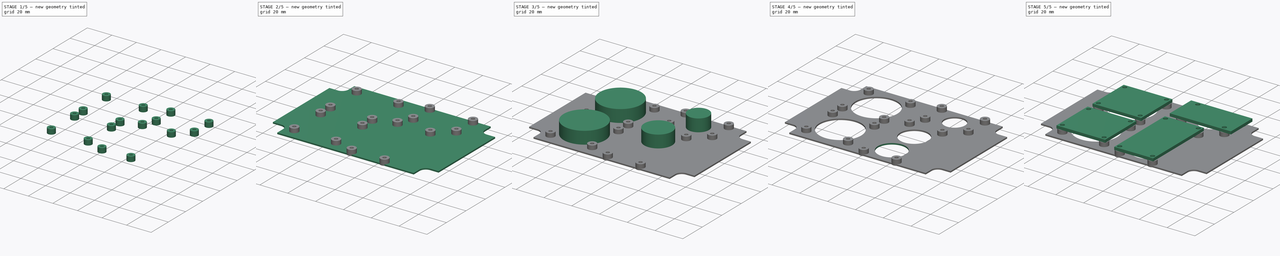
[diagram: build sequence overview — one tinted view per stage of 5, left to right]
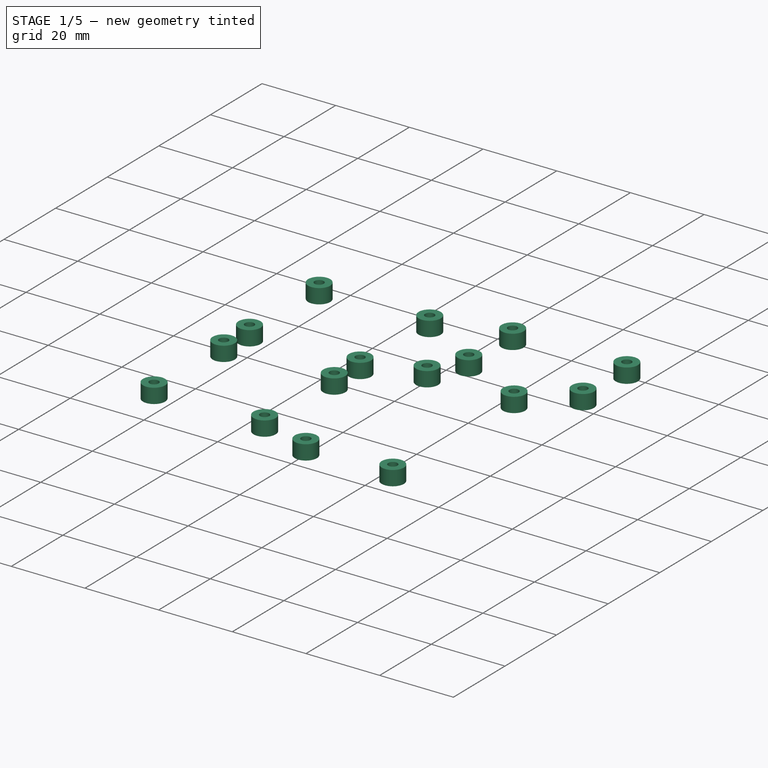
[diagram: stage 1 of 5 — iso view after this stage's code; geometry added in this stage tinted green]
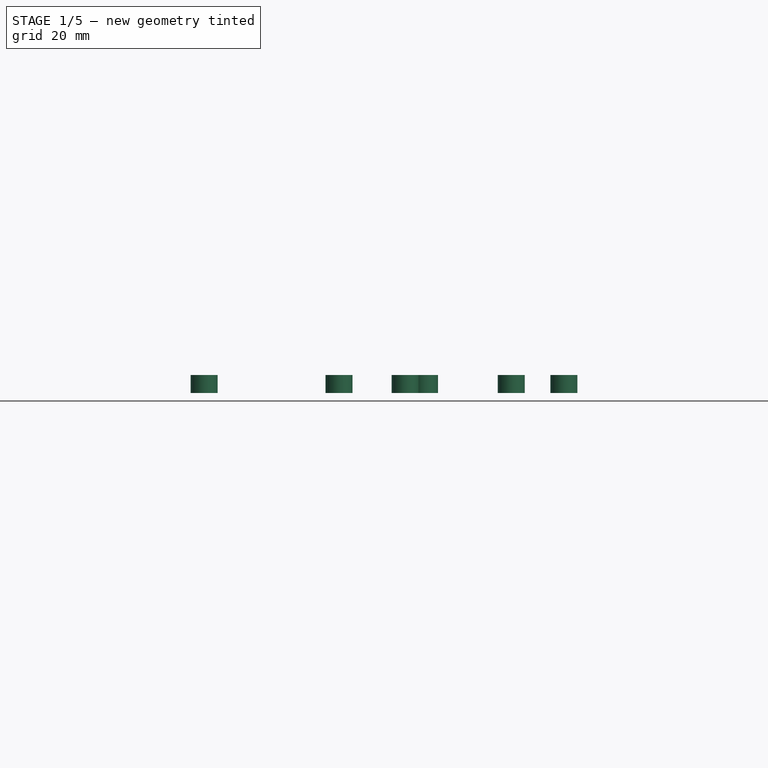
[diagram: stage 1 of 5 — front view after this stage's code; geometry added in this stage tinted green]
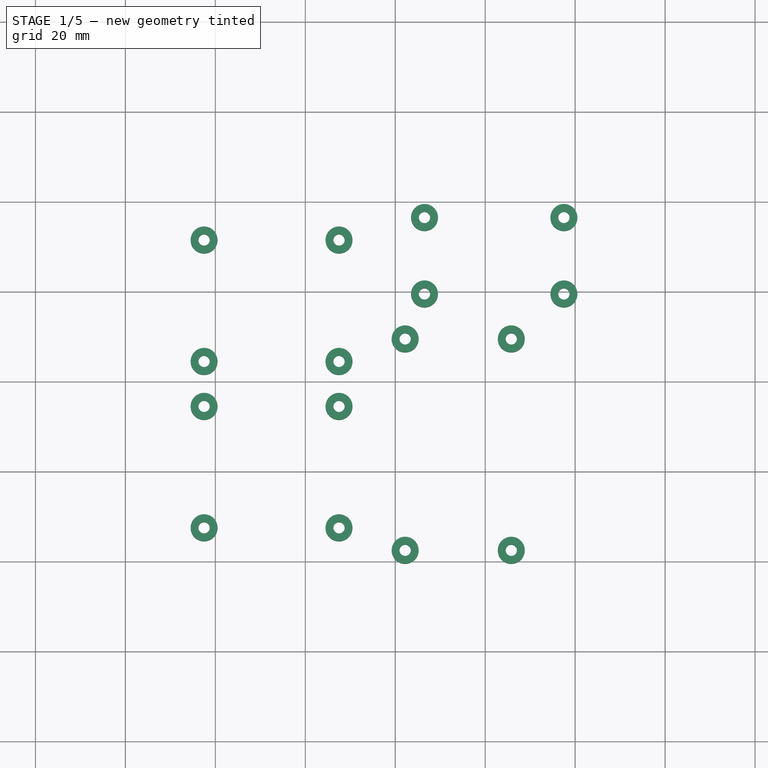
[diagram: stage 1 of 5 — top view after this stage's code; geometry added in this stage tinted green]
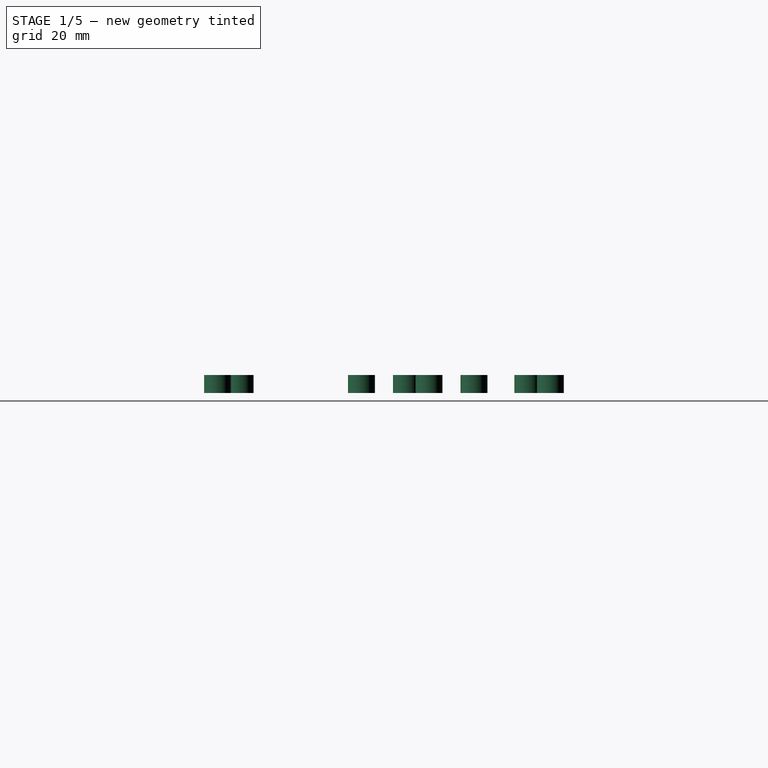
[diagram: stage 1 of 5 — right view after this stage's code; geometry added in this stage tinted green]
FCSTD DOCUMENT  (FreeCAD 0.18R4 (GitTag))
Label: ElectronicsMount
License: All rights reserved
LicenseURL: http://en.wikipedia.org/wiki/All_rights_reserved
objects: Part::Extrusion×8, Sketcher::SketchObject×7, Part::Cylinder×5, Part::MultiFuse×2, PartDesign::Body×1, PartDesign::Pad×1, Part::FeaturePython×1, Part::Cut×1, TechDraw::DrawSVGTemplate×1, TechDraw::DrawViewPart×1, TechDraw::DrawPage×1
note: 27 computed .brp shape members not serialized (recipe doc carries the construction recipe); baked Part::Feature solids carry a one-line shape summary decoded from their .brp

FEATURE [Sketcher::SketchObject] Sketch003  label="ESP32MountSketch"
  MapMode = 5
  Support = -> [XY_Plane]
  sketch-geometry (18):
    g0: LineSegment [constr] StartX=0 StartY=0 StartZ=0 EndX=28 EndY=0 EndZ=0
    g1: LineSegment [constr] StartX=28 StartY=0 StartZ=0 EndX=28 EndY=52 EndZ=0
    g2: LineSegment [constr] StartX=28 StartY=52 StartZ=0 EndX=0 EndY=52 EndZ=0
    g3: LineSegment [constr] StartX=0 StartY=52 StartZ=0 EndX=0 EndY=0 EndZ=0
    g4: Circle CenterX=2.2 CenterY=2.5 CenterZ=0 NormalX=0 NormalY=0 NormalZ=1 AngleXU=0 Radius=1.25
    g5: Circle CenterX=2.2 CenterY=49.5 CenterZ=0 NormalX=0 NormalY=0 NormalZ=1 AngleXU=0 Radius=1.25
    g6: Circle CenterX=25.8 CenterY=49.5 CenterZ=0 NormalX=0 NormalY=0 NormalZ=1 AngleXU=0 Radius=1.25
    g7: Circle CenterX=25.8 CenterY=2.5 CenterZ=0 NormalX=0 NormalY=0 NormalZ=1 AngleXU=0 Radius=1.25
    g8: LineSegment [constr] StartX=2.2 StartY=49.5 StartZ=0 EndX=25.8 EndY=49.5 EndZ=0
    g9: LineSegment [constr] StartX=25.8 StartY=49.5 StartZ=0 EndX=25.8 EndY=2.5 EndZ=0
    g10: LineSegment [constr] StartX=25.8 StartY=2.5 StartZ=0 EndX=2.2 EndY=2.5 EndZ=0
    g11: LineSegment [constr] StartX=2.2 StartY=2.5 StartZ=0 EndX=2.2 EndY=49.5 EndZ=0
    g12: LineSegment [constr] StartX=14 StartY=52 StartZ=0 EndX=14 EndY=0 EndZ=0
    g13: LineSegment [constr] StartX=0 StartY=26 StartZ=0 EndX=28 EndY=26 EndZ=0
    g14: Circle CenterX=2.2 CenterY=2.5 CenterZ=0 NormalX=0 NormalY=0 NormalZ=1 AngleXU=0 Radius=3
    g15: Circle CenterX=25.8 CenterY=2.5 CenterZ=0 NormalX=0 NormalY=0 NormalZ=1 AngleXU=0 Radius=3
    g16: Circle CenterX=25.8 CenterY=49.5 CenterZ=0 NormalX=0 NormalY=0 NormalZ=1 AngleXU=0 Radius=3
    g17: Circle CenterX=2.2 CenterY=49.5 CenterZ=0 NormalX=0 NormalY=0 NormalZ=1 AngleXU=0 Radius=3
  constraints (42):
    c: Coincident(g0,g1)
    c: Coincident(g1,g2)
    c: Coincident(g2,g3)
    c: Coincident(g3,g0)
    c: Horizontal(g0)
    c: Horizontal(g2)
    c: Vertical(g1)
    c: Vertical(g3)
    c: Coincident(g0,g-1)
    c: DistanceX(g2,g2) = 28
    c: DistanceY(g3,g3) = 52
    c: Equal(g5,g6)
    c: Equal(g6,g7)
    c: Equal(g7,g4)
    c: Diameter(g5) = 2.5
    c: Coincident(g8,g9)
    c: Coincident(g9,g10)
    c: Coincident(g10,g11)
    c: Coincident(g11,g8)
    c: Horizontal(g8)
    c: Horizontal(g10)
    c: Vertical(g9)
    c: Vertical(g11)
    c: Coincident(g8,g5)
    c: Coincident(g9,g7)
    c: DistanceX(g8,g8) = 23.6
    c: DistanceY(g9,g9) = 47
    c: Coincident(g6,g8)
    c: Coincident(g4,g10)
    c: PointOnObject(g12,g0)
    c: PointOnObject(g13,g1)
    c: Symmetric(g2,g1,g12)
    c: Symmetric(g2,g0,g13)
    c: Symmetric(g5,g4,g13)
    c: Symmetric(g4,g7,g12)
    c: Coincident(g15,g7)
    c: Coincident(g16,g6)
    c: Coincident(g17,g5)
    c: Equal(g17,g16)
    c: Equal(g16,g14)
    c: Equal(g14,g15)
    c: Diameter(g17) = 6
FEATURE [Part::Extrusion] Extrude004  label="ESP32Mount"
  Base = -> Sketch003
  Dir = (0,0,1)
  DirMode = 2
  FaceMakerClass = Part::FaceMakerBullseye
  LengthFwd = 4
  LengthRev = 0
  Placement = pos=(60,0,0) rot=(0,0,1;0rad)
  Solid = true
  Symmetric = false
FEATURE [Sketcher::SketchObject] Sketch004  label="DriverMountSketch"
  MapMode = 5
  Support = -> [XY_Plane]
  sketch-geometry (18):
    g0: LineSegment [constr] StartX=0 StartY=0 StartZ=0 EndX=32 EndY=0 EndZ=0
    g1: LineSegment [constr] StartX=32 StartY=0 StartZ=0 EndX=32 EndY=35 EndZ=0
    g2: LineSegment [constr] StartX=32 StartY=35 StartZ=0 EndX=0 EndY=35 EndZ=0
    g3: LineSegment [constr] StartX=0 StartY=35 StartZ=0 EndX=0 EndY=0 EndZ=0
    g4: Circle CenterX=2.5 CenterY=2.5 CenterZ=0 NormalX=0 NormalY=0 NormalZ=1 AngleXU=0 Radius=1.25
    g5: Circle CenterX=2.5 CenterY=32.5 CenterZ=0 NormalX=0 NormalY=0 NormalZ=1 AngleXU=0 Radius=1.25
    g6: Circle CenterX=29.5 CenterY=32.5 CenterZ=0 NormalX=0 NormalY=0 NormalZ=1 AngleXU=0 Radius=1.25
    g7: Circle CenterX=29.5 CenterY=2.5 CenterZ=0 NormalX=0 NormalY=0 NormalZ=1 AngleXU=0 Radius=1.25
    g8: LineSegment [constr] StartX=2.5 StartY=32.5 StartZ=0 EndX=29.5 EndY=32.5 EndZ=0
    g9: LineSegment [constr] StartX=29.5 StartY=32.5 StartZ=0 EndX=29.5 EndY=2.5 EndZ=0
    g10: LineSegment [constr] StartX=29.5 StartY=2.5 StartZ=0 EndX=2.5 EndY=2.5 EndZ=0
    g11: LineSegment [constr] StartX=2.5 StartY=2.5 StartZ=0 EndX=2.5 EndY=32.5 EndZ=0
    g12: LineSegment [constr] StartX=16 StartY=35 StartZ=0 EndX=16 EndY=0 EndZ=0
    g13: LineSegment [constr] StartX=0 StartY=17.5 StartZ=0 EndX=32 EndY=17.5 EndZ=0
    g14: Circle CenterX=2.5 CenterY=32.5 CenterZ=0 NormalX=0 NormalY=0 NormalZ=1 AngleXU=0 Radius=3
    g15: Circle CenterX=29.5 CenterY=32.5 CenterZ=0 NormalX=0 NormalY=0 NormalZ=1 AngleXU=0 Radius=3
    g16: Circle CenterX=2.5 CenterY=2.5 CenterZ=0 NormalX=0 NormalY=0 NormalZ=1 AngleXU=0 Radius=3
    g17: Circle CenterX=29.5 CenterY=2.5 CenterZ=0 NormalX=0 NormalY=0 NormalZ=1 AngleXU=0 Radius=3
  constraints (43):
    c: Coincident(g0,g1)
    c: Coincident(g1,g2)
    c: Coincident(g2,g3)
    c: Coincident(g3,g0)
    c: Horizontal(g0)
    c: Horizontal(g2)
    c: Vertical(g1)
    c: Vertical(g3)
    c: Coincident(g0,g-1)
    c: DistanceX(g2,g2) = 32
    c: DistanceY(g3,g3) = 35
    c: Equal(g5,g6)
    c: Equal(g6,g7)
    c: Equal(g7,g4)
    c: Diameter(g5) = 2.5
    c: Coincident(g8,g9)
    c: Coincident(g9,g10)
    c: Coincident(g10,g11)
    c: Coincident(g11,g8)
    c: Horizontal(g8)
    c: Horizontal(g10)
    c: Vertical(g9)
    c: Vertical(g11)
    c: Coincident(g8,g5)
    c: Coincident(g9,g7)
    c: DistanceX(g8,g8) = 27
    c: DistanceY(g9,g9) = 30
    c: Coincident(g6,g8)
    c: Coincident(g4,g10)
    c: PointOnObject(g12,g0)
    c: PointOnObject(g13,g1)
    c: Symmetric(g2,g1,g12)
    c: Symmetric(g2,g0,g13)
    c: Symmetric(g5,g4,g13)
    c: Symmetric(g4,g7,g12)
    c: Coincident(g14,g5)
    c: Coincident(g15,g6)
    c: Coincident(g16,g4)
    c: Coincident(g17,g7)
    c: Equal(g16,g17)
    c: Equal(g17,g15)
    c: Equal(g15,g14)
    c: Diameter(g14) = 6
FEATURE [Part::Extrusion] Extrude005  label="RADriverMount"
  Base = -> Sketch004
  Dir = (0,0,1)
  DirMode = 2
  FaceMakerClass = Part::FaceMakerBullseye
  LengthFwd = 4
  LengthRev = 0
  Placement = pos=(50,42,0) rot=(0,0,1;1.5708rad)
  Solid = true
  Symmetric = false
FEATURE [Part::Extrusion] Extrude006  label="DECDriverMount"
  Base = -> Sketch004
  Dir = (0,0,1)
  DirMode = 2
  FaceMakerClass = Part::FaceMakerBullseye
  LengthFwd = 4
  LengthRev = 0
  Placement = pos=(50,5,0) rot=(0,0,1;1.5708rad)
  Solid = true
  Symmetric = false
FEATURE [Sketcher::SketchObject] Sketch005  label="SupplyMountSketch"
  MapMode = 5
  Support = -> [XY_Plane]
  sketch-geometry (18):
    g0: LineSegment [constr] StartX=0 StartY=0 StartZ=0 EndX=22 EndY=0 EndZ=0
    g1: LineSegment [constr] StartX=22 StartY=0 StartZ=0 EndX=22 EndY=44 EndZ=0
    g2: LineSegment [constr] StartX=22 StartY=44 StartZ=0 EndX=0 EndY=44 EndZ=0
    g3: LineSegment [constr] StartX=0 StartY=44 StartZ=0 EndX=0 EndY=0 EndZ=0
    g4: Circle CenterX=2.5 CenterY=6.5 CenterZ=0 NormalX=0 NormalY=0 NormalZ=1 AngleXU=0 Radius=1.25
    g5: Circle CenterX=2.5 CenterY=37.5 CenterZ=0 NormalX=0 NormalY=0 NormalZ=1 AngleXU=0 Radius=1.25
    g6: Circle CenterX=19.5 CenterY=37.5 CenterZ=0 NormalX=0 NormalY=0 NormalZ=1 AngleXU=0 Radius=1.25
    g7: Circle CenterX=19.5 CenterY=6.5 CenterZ=0 NormalX=0 NormalY=0 NormalZ=1 AngleXU=0 Radius=1.25
    g8: LineSegment [constr] StartX=2.5 StartY=37.5 StartZ=0 EndX=19.5 EndY=37.5 EndZ=0
    g9: LineSegment [constr] StartX=19.5 StartY=37.5 StartZ=0 EndX=19.5 EndY=6.5 EndZ=0
    g10: LineSegment [constr] StartX=19.5 StartY=6.5 StartZ=0 EndX=2.5 EndY=6.5 EndZ=0
    g11: LineSegment [constr] StartX=2.5 StartY=6.5 StartZ=0 EndX=2.5 EndY=37.5 EndZ=0
    g12: LineSegment [constr] StartX=11 StartY=44 StartZ=0 EndX=11 EndY=0 EndZ=0
    g13: LineSegment [constr] StartX=0 StartY=22 StartZ=0 EndX=22 EndY=22 EndZ=0
    g14: Circle CenterX=2.5 CenterY=37.5 CenterZ=0 NormalX=0 NormalY=0 NormalZ=1 AngleXU=0 Radius=3
    g15: Circle CenterX=19.5 CenterY=37.5 CenterZ=0 NormalX=0 NormalY=0 NormalZ=1 AngleXU=0 Radius=3
    g16: Circle CenterX=19.5 CenterY=6.5 CenterZ=0 NormalX=0 NormalY=0 NormalZ=1 AngleXU=0 Radius=3
    g17: Circle CenterX=2.5 CenterY=6.5 CenterZ=0 NormalX=0 NormalY=0 NormalZ=1 AngleXU=0 Radius=3
  constraints (43):
    c: Coincident(g0,g1)
    c: Coincident(g1,g2)
    c: Coincident(g2,g3)
    c: Coincident(g3,g0)
    c: Horizontal(g0)
    c: Horizontal(g2)
    c: Vertical(g1)
    c: Vertical(g3)
    c: Coincident(g0,g-1)
    c: DistanceX(g2,g2) = 22
    c: DistanceY(g3,g3) = 44
    c: Equal(g5,g6)
    c: Equal(g6,g7)
    c: Equal(g7,g4)
    c: Diameter(g5) = 2.5
    c: Coincident(g8,g9)
    c: Coincident(g9,g10)
    c: Coincident(g10,g11)
    c: Coincident(g11,g8)
    c: Horizontal(g8)
    c: Horizontal(g10)
    c: Vertical(g9)
    c: Vertical(g11)
    c: Coincident(g8,g5)
    c: Coincident(g9,g7)
    c: DistanceX(g8,g8) = 17
    c: DistanceY(g9,g9) = 31
    c: Coincident(g6,g8)
    c: Coincident(g4,g10)
    c: PointOnObject(g12,g0)
    c: PointOnObject(g13,g1)
    c: Symmetric(g2,g1,g12)
    c: Symmetric(g2,g0,g13)
    c: Symmetric(g5,g4,g13)
    c: Symmetric(g4,g7,g12)
    c: Coincident(g14,g5)
    c: Coincident(g15,g6)
    c: Coincident(g16,g7)
    c: Coincident(g17,g4)
    c: Equal(g14,g15)
    c: Equal(g15,g17)
    c: Equal(g17,g16)
    c: Diameter(g14) = 6
FEATURE [Part::Extrusion] Extrude007  label="SupplyMount"
  Base = -> Sketch005
  Dir = (0,0,1)
  DirMode = 2
  FaceMakerClass = Part::FaceMakerBullseye
  LengthFwd = 4
  LengthRev = 0
  Placement = pos=(104,57,0) rot=(0,0,1;1.5708rad)
  Solid = true
  Symmetric = false
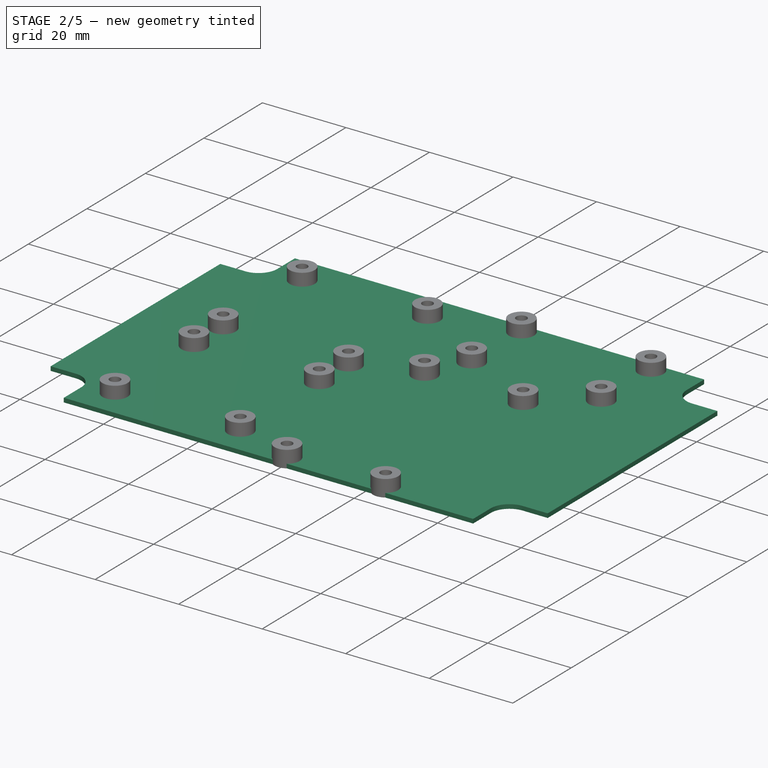
[diagram: stage 2 of 5 — iso view after this stage's code; geometry added in this stage tinted green]
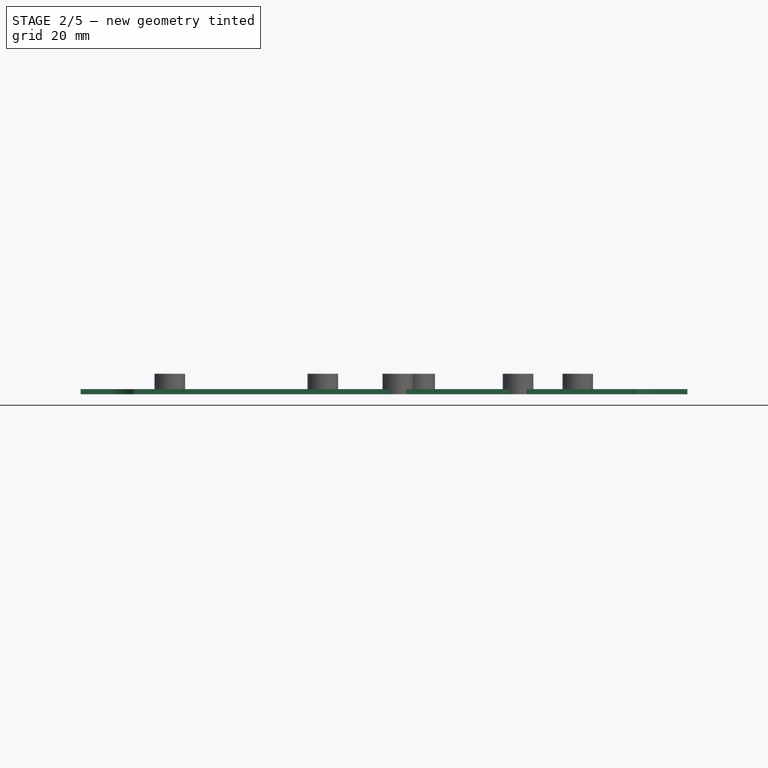
[diagram: stage 2 of 5 — front view after this stage's code; geometry added in this stage tinted green]
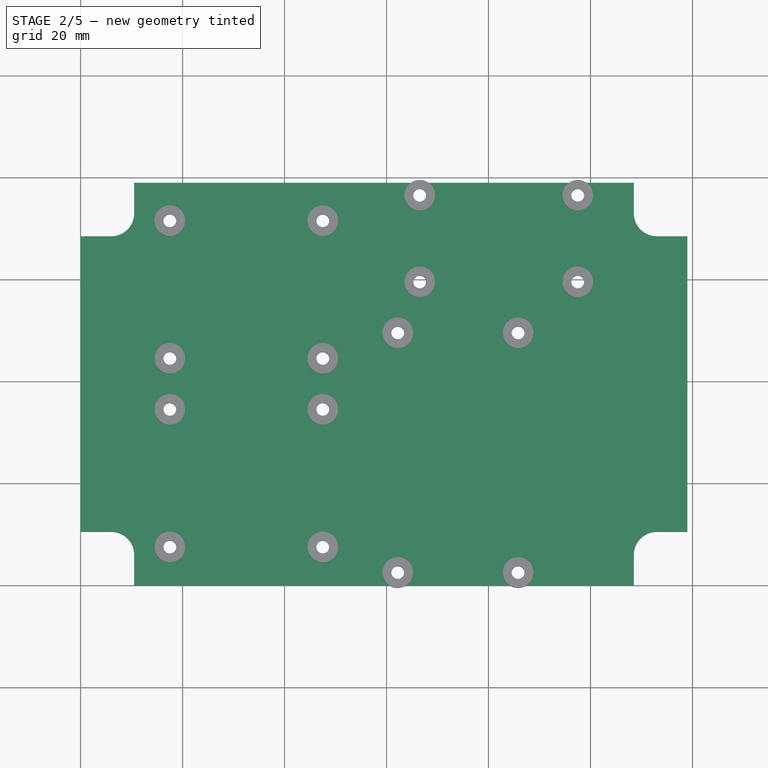
[diagram: stage 2 of 5 — top view after this stage's code; geometry added in this stage tinted green]
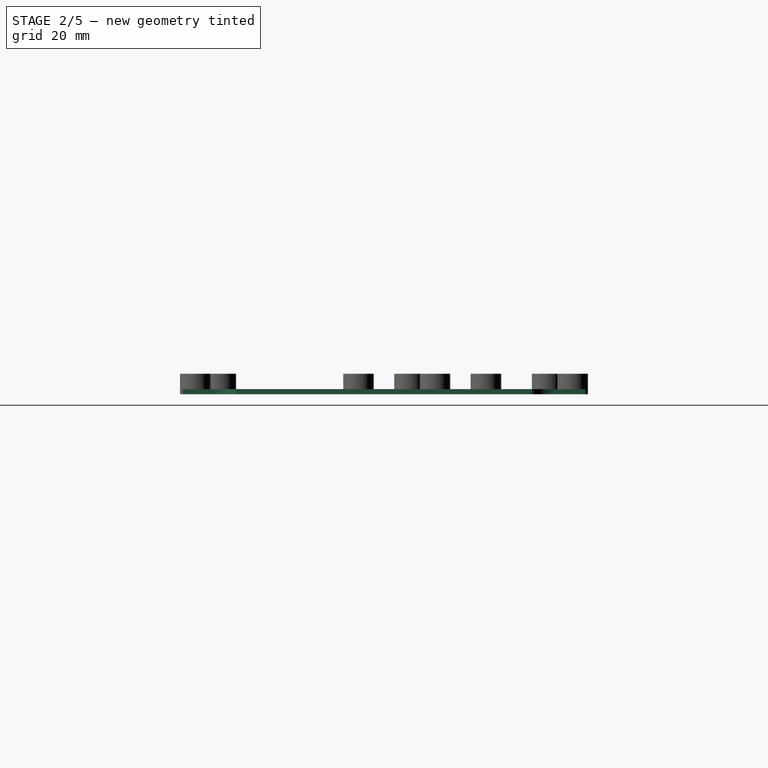
[diagram: stage 2 of 5 — right view after this stage's code; geometry added in this stage tinted green]
FEATURE [Sketcher::SketchObject] Sketch006
  MapMode = 5
  Support = -> [XY_Plane]
  sketch-geometry (16):
    g0: ArcOfCircle CenterX=6 CenterY=73 CenterZ=0 NormalX=0 NormalY=0 NormalZ=1 AngleXU=0 Radius=4.5 StartAngle=4.71239 EndAngle=6.28319
    g1: LineSegment StartX=6 StartY=68.5 StartZ=0 EndX=0 EndY=68.5 EndZ=0
    g2: LineSegment StartX=10.5 StartY=73 StartZ=0 EndX=10.5 EndY=79 EndZ=0
    g3: LineSegment StartX=0 StartY=68.5 StartZ=0 EndX=0 EndY=10.5 EndZ=0
    g4: ArcOfCircle CenterX=6 CenterY=6 CenterZ=0 NormalX=0 NormalY=0 NormalZ=1 AngleXU=0 Radius=4.5 StartAngle=6.28319 EndAngle=7.85398
    g5: LineSegment StartX=6 StartY=10.5 StartZ=0 EndX=0 EndY=10.5 EndZ=0
    g6: LineSegment StartX=10.5 StartY=0 StartZ=0 EndX=10.5 EndY=6 EndZ=0
    g7: LineSegment StartX=10.5 StartY=0 StartZ=0 EndX=108.5 EndY=0 EndZ=0
    g8: ArcOfCircle CenterX=113 CenterY=6 CenterZ=0 NormalX=0 NormalY=0 NormalZ=1 AngleXU=0 Radius=4.5 StartAngle=1.57079 EndAngle=3.14159
    g9: LineSegment StartX=119 StartY=10.5 StartZ=0 EndX=113 EndY=10.5 EndZ=0
    g10: LineSegment StartX=108.5 StartY=0 StartZ=0 EndX=108.5 EndY=6 EndZ=0
    g11: LineSegment StartX=119 StartY=10.5 StartZ=0 EndX=119 EndY=68.5 EndZ=0
    g12: ArcOfCircle CenterX=113 CenterY=73 CenterZ=0 NormalX=0 NormalY=0 NormalZ=1 AngleXU=0 Radius=4.5 StartAngle=3.14159 EndAngle=4.71239
    g13: LineSegment StartX=119 StartY=68.5 StartZ=0 EndX=113 EndY=68.5 EndZ=0
    g14: LineSegment StartX=108.5 StartY=79 StartZ=0 EndX=108.5 EndY=73 EndZ=0
    g15: LineSegment StartX=108.5 StartY=79 StartZ=0 EndX=10.5 EndY=79 EndZ=0
  constraints (52):
    c: Diameter(g0) = 9
    c: Horizontal(g1)
    c: Vertical(g2)
    c: Tangent(g2,g0)
    c: Coincident(g0,g1)
    c: Coincident(g0,g2)
    c: Tangent(g1,g0)
    c: Coincident(g15,g2)
    c: Coincident(g3,g1)
    c: Horizontal(g5)
    c: Coincident(g4,g6)
    c: Vertical(g6)
    c: Coincident(g4,g6)
    c: Equal(g0,g4)
    c: Coincident(g3,g5)
    c: Coincident(g7,g6)
    c: Tangent(g4,g5) = -1.5708
    c: Tangent(g4,g6)
    c: PointOnObject(g6,g-1)
    c: PointOnObject(g3,g-2)
    c: Horizontal(g7)
    c: Tangent(g9,g8)
    c: Tangent(g10,g8)
    c: Coincident(g8,g10)
    c: Coincident(g8,g9)
    c: Horizontal(g9)
    c: Vertical(g10)
    c: Equal(g4,g8)
    c: Coincident(g7,g10)
    c: Coincident(g11,g9)
    c: Equal(g10,g9)
    c: Vertical(g11)
    c: Tangent(g14,g12)
    c: Coincident(g12,g14)
    c: Vertical(g14)
    c: Horizontal(g13)
    c: Tangent(g12,g13)
    c: Equal(g12,g0)
    c: Equal(g14,g13)
    c: Equal(g14,g2)
    c: Horizontal(g15)
    c: Coincident(g14,g15)
    c: Coincident(g12,g13)
    c: Coincident(g13,g11)
    c: Equal(g1,g2)
    c: Vertical(g3)
    c: DistanceX(g1,g1) = 6
    c: Equal(g1,g5)
    c: Equal(g5,g6)
    c: Equal(g6,g10)
    c: DistanceY(g3,g3) = 58
    c: DistanceX(g7,g7) = 98
FEATURE [PartDesign::Body] Body
  Group = -> [Sketch,Sketch001,Sketch002,Sketch006]
  Origin = -> Origin
FEATURE [PartDesign::Pad] Pad  label="Plate"
  Length = 1
  Length2 = 100
  Profile = -> Sketch006
  Type = 0
FEATURE [Part::MultiFuse] Fusion  label="Mounts"
  Shapes = -> [Extrude007,Extrude006,Extrude005,Extrude004]
FEATURE [Part::FeaturePython] Embed  # WARN: FeaturePython — macro-defined, semantics opaque (R4)
  Base = -> Pad
  Tolerance = 0
  Tool = -> Fusion
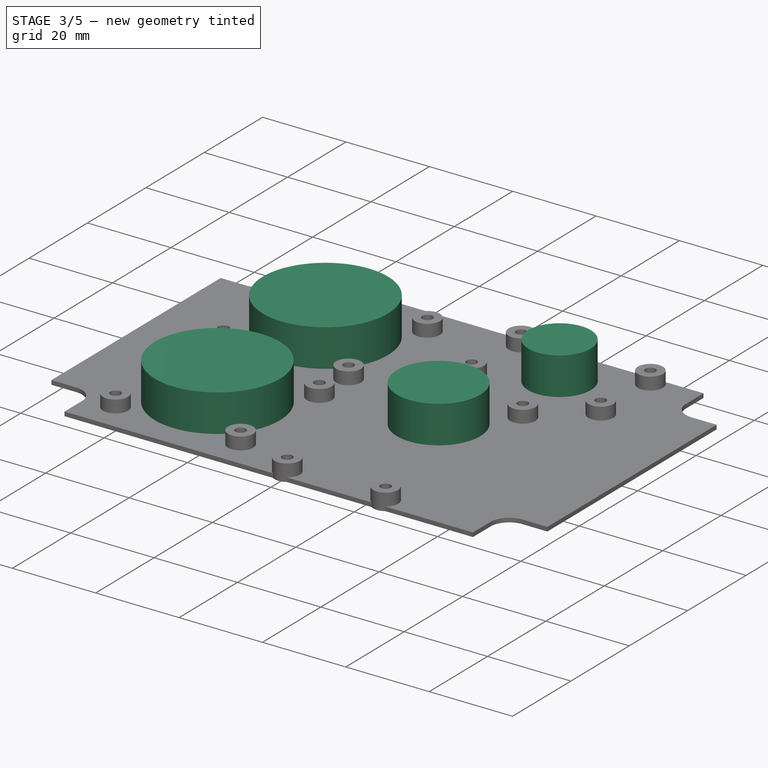
[diagram: stage 3 of 5 — iso view after this stage's code; geometry added in this stage tinted green]
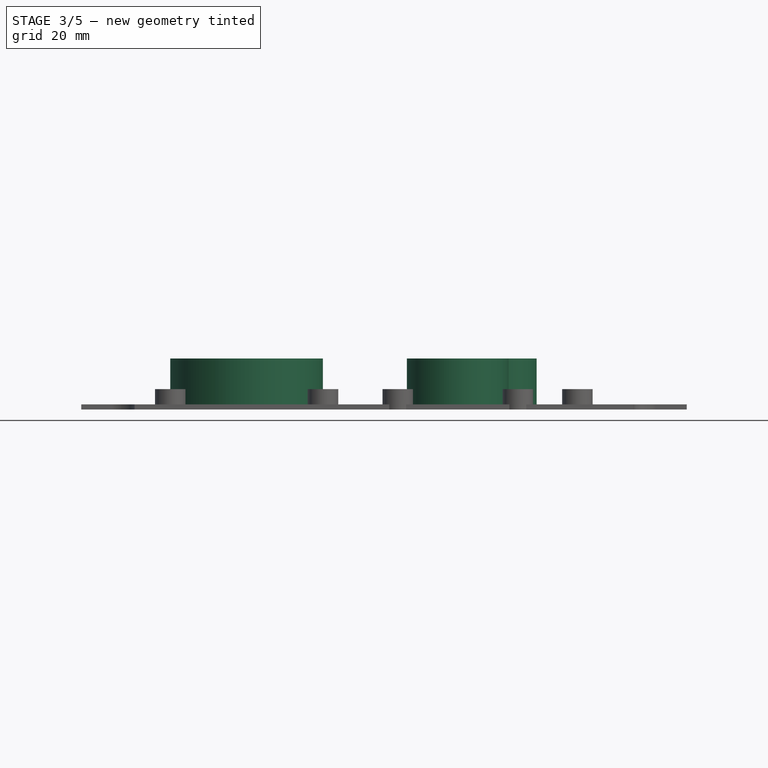
[diagram: stage 3 of 5 — front view after this stage's code; geometry added in this stage tinted green]
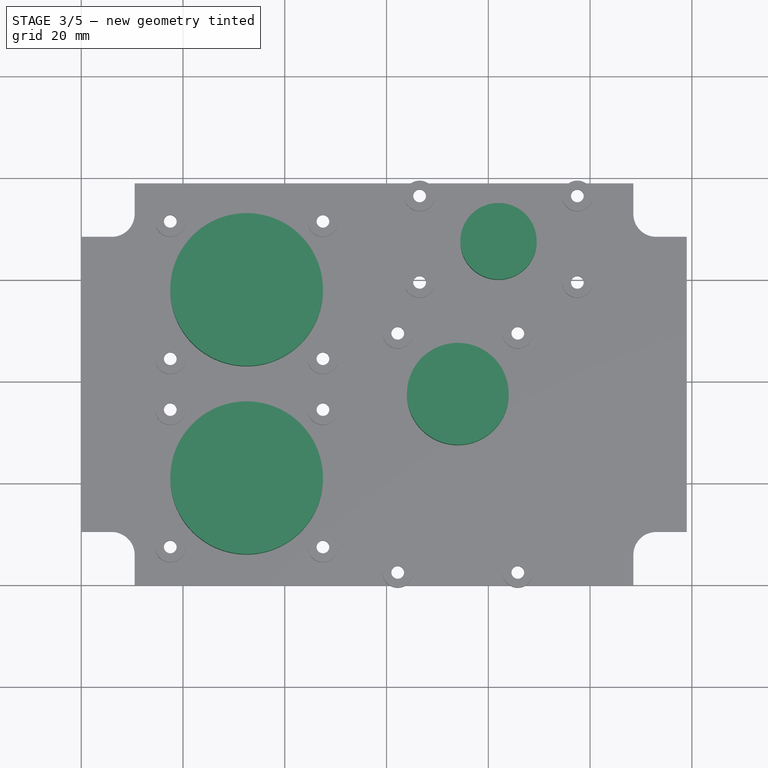
[diagram: stage 3 of 5 — top view after this stage's code; geometry added in this stage tinted green]
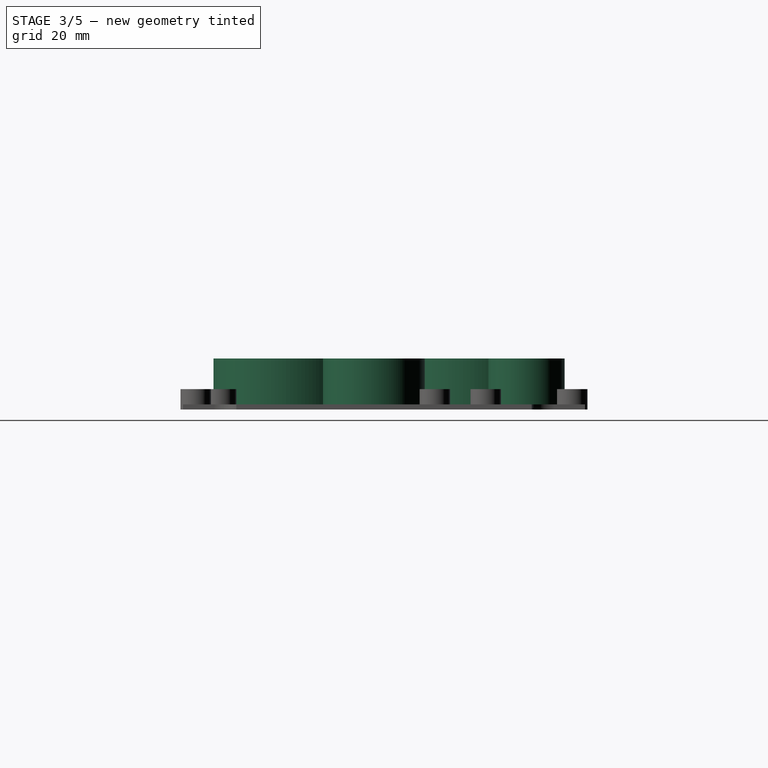
[diagram: stage 3 of 5 — right view after this stage's code; geometry added in this stage tinted green]
FEATURE [Part::Cylinder] Cylinder001
  Angle = 360
  AttacherType = Attacher::AttachEngine3D
  Height = 10
  Placement = pos=(32.5,21,0) rot=(0,0,1;0rad)
  Radius = 15
FEATURE [Part::Cylinder] Cylinder002
  Angle = 360
  AttacherType = Attacher::AttachEngine3D
  Height = 10
  Placement = pos=(32.5,58,0) rot=(0,0,1;0rad)
  Radius = 15
FEATURE [Part::Cylinder] Cylinder003
  Angle = 360
  AttacherType = Attacher::AttachEngine3D
  Height = 10
  Placement = pos=(82,67.5,0) rot=(0,0,1;0rad)
  Radius = 7.5
FEATURE [Part::Cylinder] Cylinder004
  Angle = 360
  AttacherType = Attacher::AttachEngine3D
  Height = 10
  Placement = pos=(74,37.5,0) rot=(0,0,1;0rad)
  Radius = 10
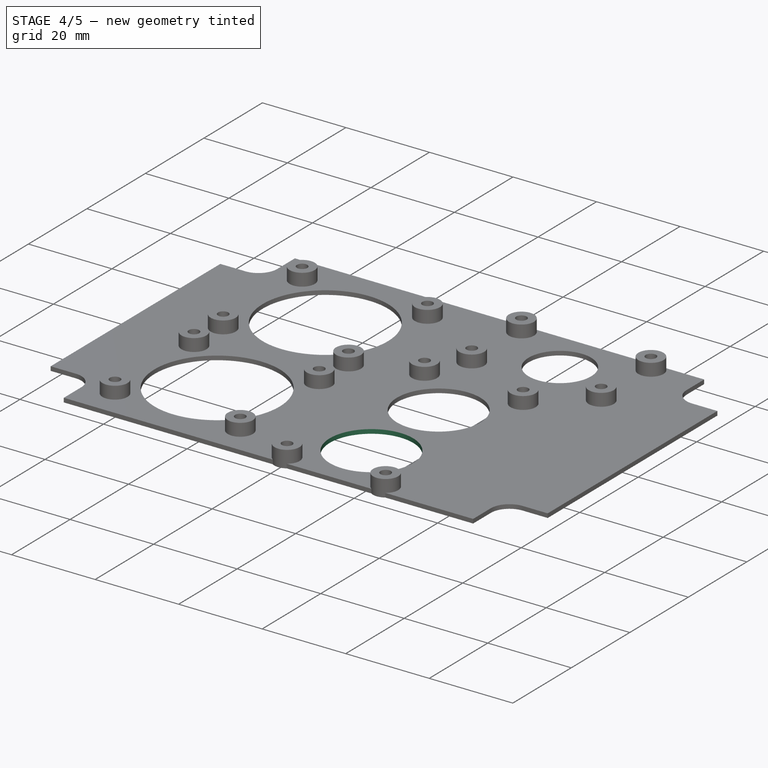
[diagram: stage 4 of 5 — iso view after this stage's code; geometry added in this stage tinted green]
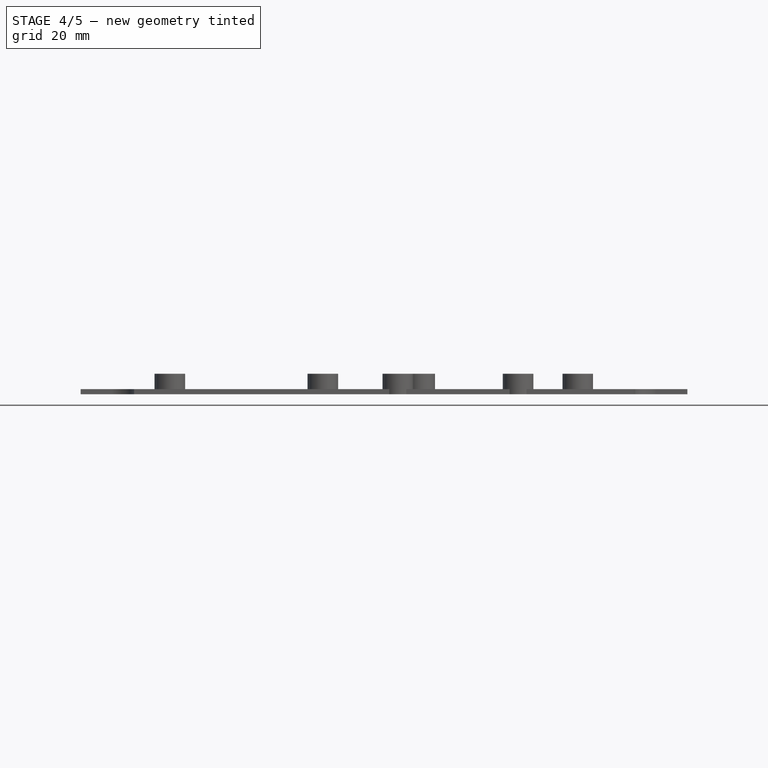
[diagram: stage 4 of 5 — front view after this stage's code; geometry added in this stage tinted green]
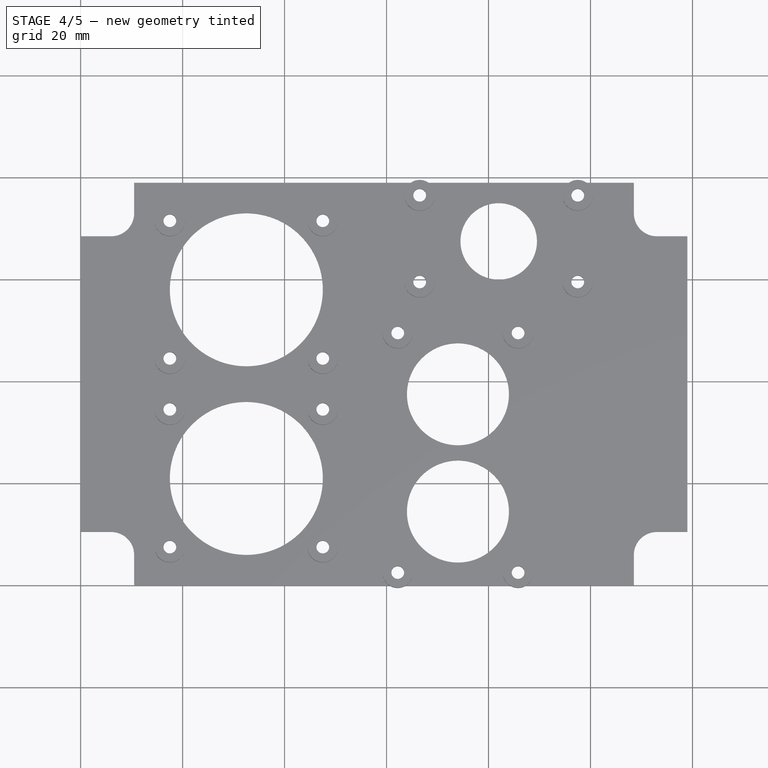
[diagram: stage 4 of 5 — top view after this stage's code; geometry added in this stage tinted green]
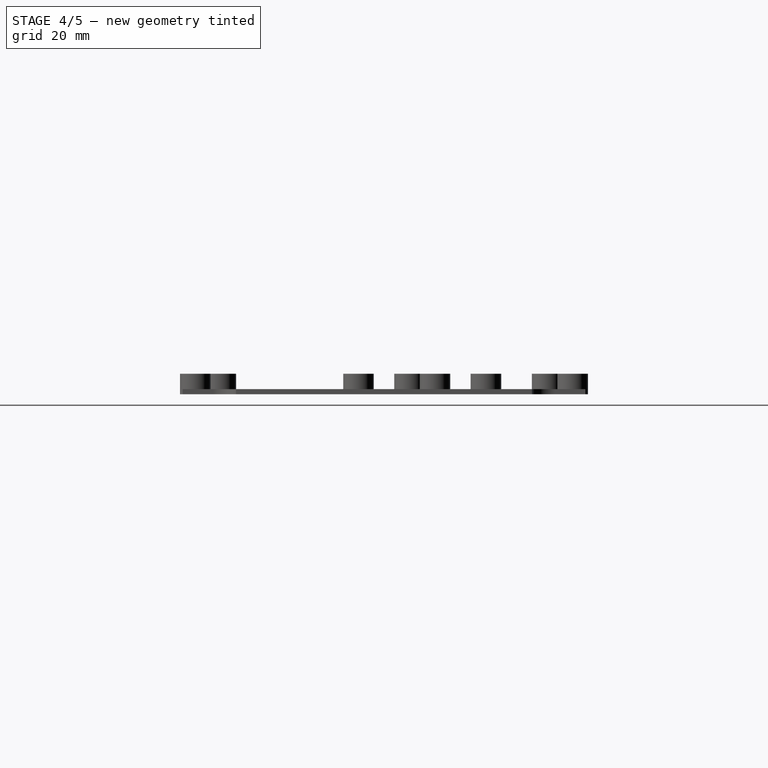
[diagram: stage 4 of 5 — right view after this stage's code; geometry added in this stage tinted green]
FEATURE [Part::Cylinder] Cylinder
  Angle = 360
  AttacherType = Attacher::AttachEngine3D
  Height = 10
  Placement = pos=(74,14.5,0) rot=(0,0,1;0rad)
  Radius = 10
FEATURE [Part::MultiFuse] Fusion002
  Placement = pos=(0,0,-4) rot=(0,0,1;0rad)
  Shapes = -> [Cylinder,Cylinder004,Cylinder002,Cylinder003,Cylinder001]
FEATURE [Part::Cut] Cut  label="_Final"
  Base = -> Embed
  Tool = -> Fusion002
FEATURE [TechDraw::DrawSVGTemplate] Template
  EditableTexts = Designed_by_Name=Designed by Name; Drawing_number=Drawing number; FC-Date=Date; FC-SC=Scale; FC-SH=Sheet; FC-Title=Title; Subtitle=Subtitle; Weight=Weight
  Height = 210
  Orientation = 1
  Width = 297
FEATURE [TechDraw::DrawViewPart] View
  CoarseView = false
  Direction = (0,0,1)
  Focus = 100
  HardHidden = false
  IsoCount = 0
  IsoHidden = false
  IsoVisible = false
  LockPosition = false
  Perspective = false
  Rotation = 0
  ScaleType = 0
  SeamHidden = false
  SeamVisible = false
  SmoothHidden = false
  SmoothVisible = false
  Source = -> [Cut]
  X = 148.5
  Y = 105
FEATURE [TechDraw::DrawPage] Page
  KeepUpdated = true
  ProjectionType = 0
  Template = -> Template
  Views = -> [View]
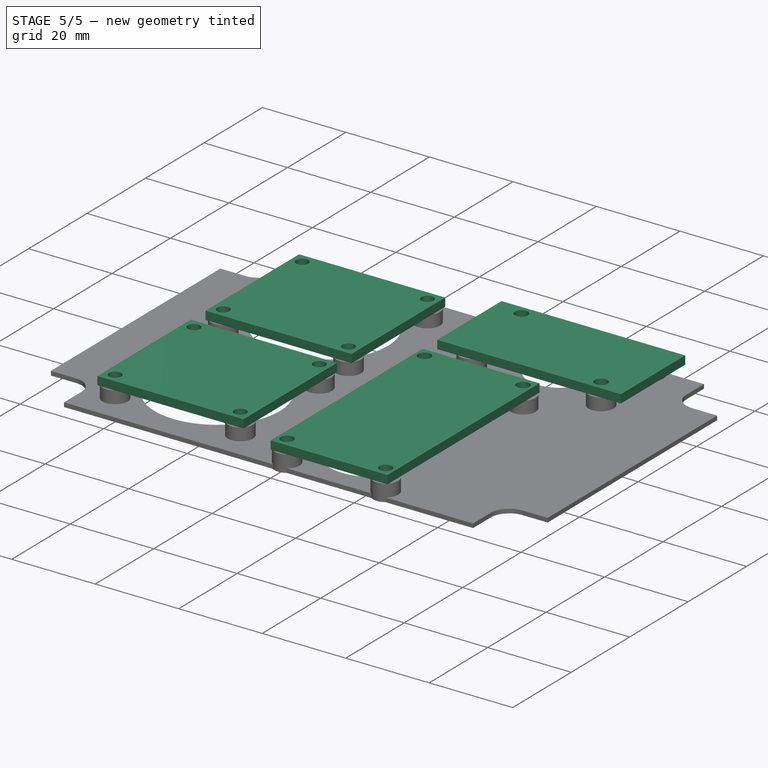
[diagram: stage 5 of 5 — iso view after this stage's code; geometry added in this stage tinted green]
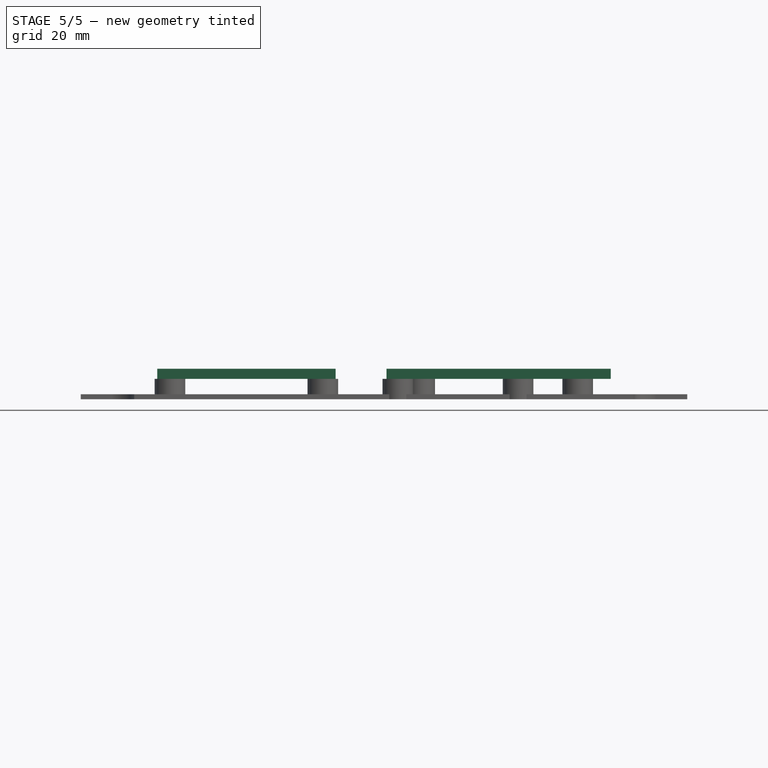
[diagram: stage 5 of 5 — front view after this stage's code; geometry added in this stage tinted green]
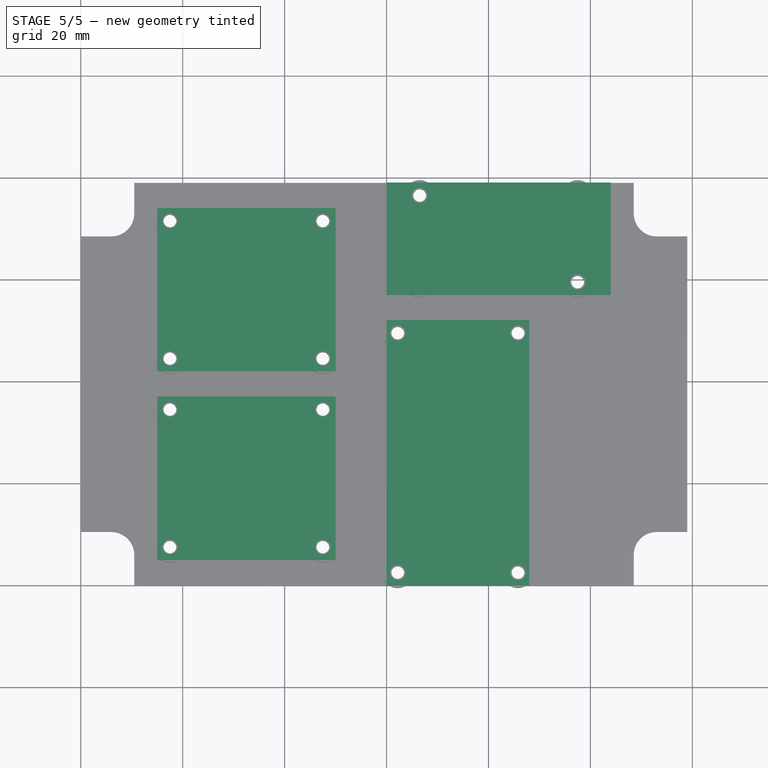
[diagram: stage 5 of 5 — top view after this stage's code; geometry added in this stage tinted green]
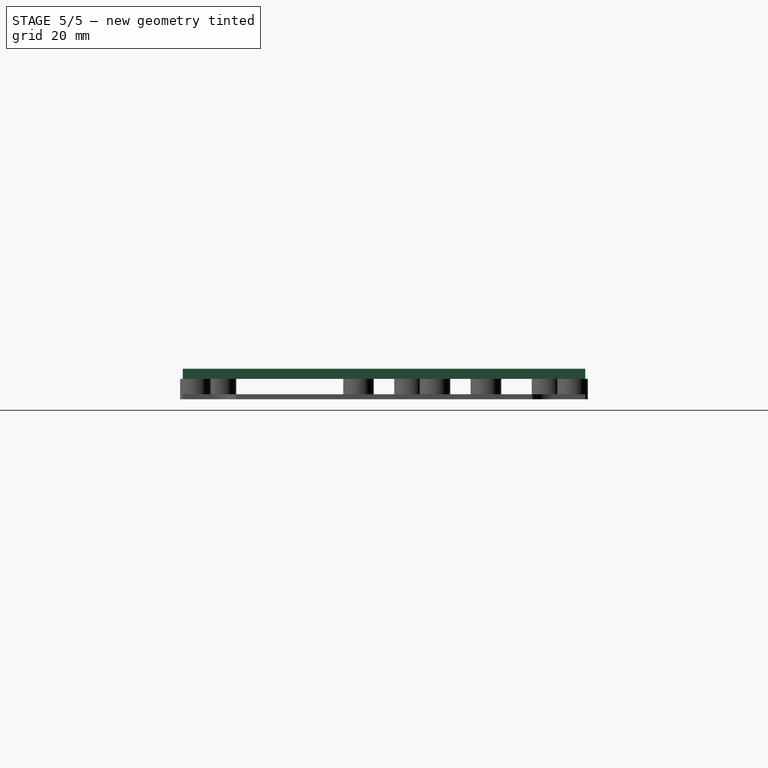
[diagram: stage 5 of 5 — right view after this stage's code; geometry added in this stage tinted green]
FEATURE [Sketcher::SketchObject] Sketch  label="ESP32Sketch"
  MapMode = 5
  Support = -> [XY_Plane]
  sketch-geometry (14):
    g0: LineSegment StartX=0 StartY=0 StartZ=0 EndX=28 EndY=0 EndZ=0
    g1: LineSegment StartX=28 StartY=0 StartZ=0 EndX=28 EndY=52 EndZ=0
    g2: LineSegment StartX=28 StartY=52 StartZ=0 EndX=0 EndY=52 EndZ=0
    g3: LineSegment StartX=0 StartY=52 StartZ=0 EndX=0 EndY=0 EndZ=0
    g4: Circle CenterX=2.2 CenterY=2.5 CenterZ=0 NormalX=0 NormalY=0 NormalZ=1 AngleXU=0 Radius=1.5
    g5: Circle CenterX=2.2 CenterY=49.5 CenterZ=0 NormalX=0 NormalY=0 NormalZ=1 AngleXU=0 Radius=1.5
    g6: Circle CenterX=25.8 CenterY=49.5 CenterZ=0 NormalX=0 NormalY=0 NormalZ=1 AngleXU=0 Radius=1.5
    g7: Circle CenterX=25.8 CenterY=2.5 CenterZ=0 NormalX=0 NormalY=0 NormalZ=1 AngleXU=0 Radius=1.5
    g8: LineSegment [constr] StartX=2.2 StartY=49.5 StartZ=0 EndX=25.8 EndY=49.5 EndZ=0
    g9: LineSegment [constr] StartX=25.8 StartY=49.5 StartZ=0 EndX=25.8 EndY=2.5 EndZ=0
    g10: LineSegment [constr] StartX=25.8 StartY=2.5 StartZ=0 EndX=2.2 EndY=2.5 EndZ=0
    g11: LineSegment [constr] StartX=2.2 StartY=2.5 StartZ=0 EndX=2.2 EndY=49.5 EndZ=0
    g12: LineSegment [constr] StartX=14 StartY=52 StartZ=0 EndX=14 EndY=0 EndZ=0
    g13: LineSegment [constr] StartX=0 StartY=26 StartZ=0 EndX=28 EndY=26 EndZ=0
  constraints (35):
    c: Coincident(g0,g1)
    c: Coincident(g1,g2)
    c: Coincident(g2,g3)
    c: Coincident(g3,g0)
    c: Horizontal(g0)
    c: Horizontal(g2)
    c: Vertical(g1)
    c: Vertical(g3)
    c: Coincident(g0,g-1)
    c: DistanceX(g2,g2) = 28
    c: DistanceY(g3,g3) = 52
    c: Equal(g5,g6)
    c: Equal(g6,g7)
    c: Equal(g7,g4)
    c: Diameter(g5) = 3
    c: Coincident(g8,g9)
    c: Coincident(g9,g10)
    c: Coincident(g10,g11)
    c: Coincident(g11,g8)
    c: Horizontal(g8)
    c: Horizontal(g10)
    c: Vertical(g9)
    c: Vertical(g11)
    c: Coincident(g8,g5)
    c: Coincident(g9,g7)
    c: DistanceX(g8,g8) = 23.6
    c: DistanceY(g9,g9) = 47
    c: Coincident(g6,g8)
    c: Coincident(g4,g10)
    c: PointOnObject(g12,g0)
    c: PointOnObject(g13,g1)
    c: Symmetric(g2,g1,g12)
    c: Symmetric(g2,g0,g13)
    c: Symmetric(g5,g4,g13)
    c: Symmetric(g4,g7,g12)
FEATURE [Sketcher::SketchObject] Sketch001  label="DriverSketch"
  MapMode = 5
  Support = -> [XY_Plane]
  sketch-geometry (14):
    g0: LineSegment StartX=0 StartY=0 StartZ=0 EndX=32 EndY=0 EndZ=0
    g1: LineSegment StartX=32 StartY=0 StartZ=0 EndX=32 EndY=35 EndZ=0
    g2: LineSegment StartX=32 StartY=35 StartZ=0 EndX=0 EndY=35 EndZ=0
    g3: LineSegment StartX=0 StartY=35 StartZ=0 EndX=0 EndY=0 EndZ=0
    g4: Circle CenterX=2.5 CenterY=2.5 CenterZ=0 NormalX=0 NormalY=0 NormalZ=1 AngleXU=0 Radius=1.45
    g5: Circle CenterX=2.5 CenterY=32.5 CenterZ=0 NormalX=0 NormalY=0 NormalZ=1 AngleXU=0 Radius=1.45
    g6: Circle CenterX=29.5 CenterY=32.5 CenterZ=0 NormalX=0 NormalY=0 NormalZ=1 AngleXU=0 Radius=1.45
    g7: Circle CenterX=29.5 CenterY=2.5 CenterZ=0 NormalX=0 NormalY=0 NormalZ=1 AngleXU=0 Radius=1.45
    g8: LineSegment [constr] StartX=2.5 StartY=32.5 StartZ=0 EndX=29.5 EndY=32.5 EndZ=0
    g9: LineSegment [constr] StartX=29.5 StartY=32.5 StartZ=0 EndX=29.5 EndY=2.5 EndZ=0
    g10: LineSegment [constr] StartX=29.5 StartY=2.5 StartZ=0 EndX=2.5 EndY=2.5 EndZ=0
    g11: LineSegment [constr] StartX=2.5 StartY=2.5 StartZ=0 EndX=2.5 EndY=32.5 EndZ=0
    g12: LineSegment [constr] StartX=16 StartY=35 StartZ=0 EndX=16 EndY=0 EndZ=0
    g13: LineSegment [constr] StartX=0 StartY=17.5 StartZ=0 EndX=32 EndY=17.5 EndZ=0
  constraints (35):
    c: Coincident(g0,g1)
    c: Coincident(g1,g2)
    c: Coincident(g2,g3)
    c: Coincident(g3,g0)
    c: Horizontal(g0)
    c: Horizontal(g2)
    c: Vertical(g1)
    c: Vertical(g3)
    c: Coincident(g0,g-1)
    c: DistanceX(g2,g2) = 32
    c: DistanceY(g3,g3) = 35
    c: Equal(g5,g6)
    c: Equal(g6,g7)
    c: Equal(g7,g4)
    c: Diameter(g5) = 2.9
    c: Coincident(g8,g9)
    c: Coincident(g9,g10)
    c: Coincident(g10,g11)
    c: Coincident(g11,g8)
    c: Horizontal(g8)
    c: Horizontal(g10)
    c: Vertical(g9)
    c: Vertical(g11)
    c: Coincident(g8,g5)
    c: Coincident(g9,g7)
    c: DistanceX(g8,g8) = 27
    c: DistanceY(g9,g9) = 30
    c: Coincident(g6,g8)
    c: Coincident(g4,g10)
    c: PointOnObject(g12,g0)
    c: PointOnObject(g13,g1)
    c: Symmetric(g2,g1,g12)
    c: Symmetric(g2,g0,g13)
    c: Symmetric(g5,g4,g13)
    c: Symmetric(g4,g7,g12)
FEATURE [Part::Extrusion] Extrude  label="RADriver"
  Base = -> Sketch001
  Dir = (0,0,1)
  DirMode = 2
  FaceMakerClass = Part::FaceMakerBullseye
  LengthFwd = 2
  LengthRev = 0
  Placement = pos=(50,42,4) rot=(0,0,1;1.5708rad)
  Solid = true
  Symmetric = false
FEATURE [Part::Extrusion] Extrude001  label="DECDriver"
  Base = -> Sketch001
  Dir = (0,0,1)
  DirMode = 2
  FaceMakerClass = Part::FaceMakerBullseye
  LengthFwd = 2
  LengthRev = 0
  Placement = pos=(50,5,4) rot=(0,0,1;1.5708rad)
  Solid = true
  Symmetric = false
FEATURE [Part::Extrusion] Extrude002  label="ESP32"
  Base = -> Sketch
  Dir = (0,0,1)
  DirMode = 2
  FaceMakerClass = Part::FaceMakerBullseye
  LengthFwd = 2
  LengthRev = 0
  Placement = pos=(60,0,4) rot=(0,0,1;0rad)
  Solid = true
  Symmetric = false
FEATURE [Sketcher::SketchObject] Sketch002  label="SupplySketch"
  MapMode = 5
  Support = -> [XY_Plane]
  sketch-geometry (14):
    g0: LineSegment StartX=0 StartY=0 StartZ=0 EndX=22 EndY=0 EndZ=0
    g1: LineSegment StartX=22 StartY=0 StartZ=0 EndX=22 EndY=44 EndZ=0
    g2: LineSegment StartX=22 StartY=44 StartZ=0 EndX=0 EndY=44 EndZ=0
    g3: LineSegment StartX=0 StartY=44 StartZ=0 EndX=0 EndY=0 EndZ=0
    g4: Circle CenterX=2.5 CenterY=6.5 CenterZ=0 NormalX=0 NormalY=0 NormalZ=1 AngleXU=0 Radius=1.525
    g5: Circle [constr] CenterX=2.5 CenterY=37.5 CenterZ=0 NormalX=0 NormalY=0 NormalZ=1 AngleXU=0 Radius=1.525
    g6: Circle CenterX=19.5 CenterY=37.5 CenterZ=0 NormalX=0 NormalY=0 NormalZ=1 AngleXU=0 Radius=1.525
    g7: Circle [constr] CenterX=19.5 CenterY=6.5 CenterZ=0 NormalX=0 NormalY=0 NormalZ=1 AngleXU=0 Radius=1.525
    g8: LineSegment [constr] StartX=2.5 StartY=37.5 StartZ=0 EndX=19.5 EndY=37.5 EndZ=0
    g9: LineSegment [constr] StartX=19.5 StartY=37.5 StartZ=0 EndX=19.5 EndY=6.5 EndZ=0
    g10: LineSegment [constr] StartX=19.5 StartY=6.5 StartZ=0 EndX=2.5 EndY=6.5 EndZ=0
    g11: LineSegment [constr] StartX=2.5 StartY=6.5 StartZ=0 EndX=2.5 EndY=37.5 EndZ=0
    g12: LineSegment [constr] StartX=11 StartY=44 StartZ=0 EndX=11 EndY=0 EndZ=0
    g13: LineSegment [constr] StartX=0 StartY=22 StartZ=0 EndX=22 EndY=22 EndZ=0
  constraints (35):
    c: Coincident(g0,g1)
    c: Coincident(g1,g2)
    c: Coincident(g2,g3)
    c: Coincident(g3,g0)
    c: Horizontal(g0)
    c: Horizontal(g2)
    c: Vertical(g1)
    c: Vertical(g3)
    c: Coincident(g0,g-1)
    c: DistanceX(g2,g2) = 22
    c: DistanceY(g3,g3) = 44
    c: Equal(g5,g6)
    c: Equal(g6,g7)
    c: Equal(g7,g4)
    c: Diameter(g5) = 3.05
    c: Coincident(g8,g9)
    c: Coincident(g9,g10)
    c: Coincident(g10,g11)
    c: Coincident(g11,g8)
    c: Horizontal(g8)
    c: Horizontal(g10)
    c: Vertical(g9)
    c: Vertical(g11)
    c: Coincident(g8,g5)
    c: Coincident(g9,g7)
    c: DistanceX(g8,g8) = 17
    c: DistanceY(g9,g9) = 31
    c: Coincident(g6,g8)
    c: Coincident(g4,g10)
    c: PointOnObject(g12,g0)
    c: PointOnObject(g13,g1)
    c: Symmetric(g2,g1,g12)
    c: Symmetric(g2,g0,g13)
    c: Symmetric(g5,g4,g13)
    c: Symmetric(g4,g7,g12)
FEATURE [Part::Extrusion] Extrude003  label="Supply"
  Base = -> Sketch002
  Dir = (0,0,1)
  DirMode = 2
  FaceMakerClass = Part::FaceMakerBullseye
  LengthFwd = 2
  LengthRev = 0
  Placement = pos=(104,57,4) rot=(0,0,1;1.5708rad)
  Solid = true
  Symmetric = false
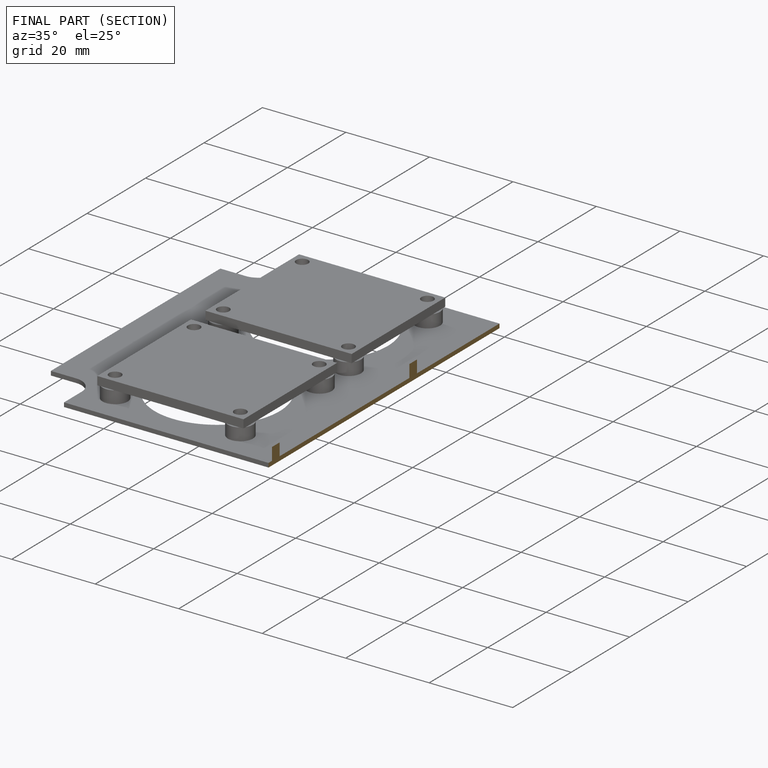
[diagram: finished part — half-section view (interior)]
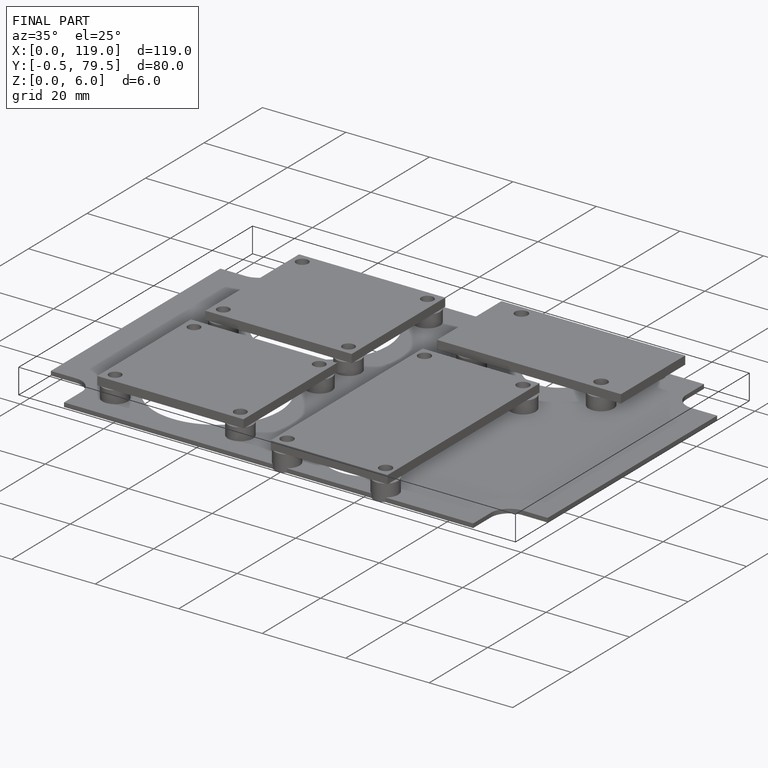
[diagram: finished part — iso view with bounding-box wireframe]
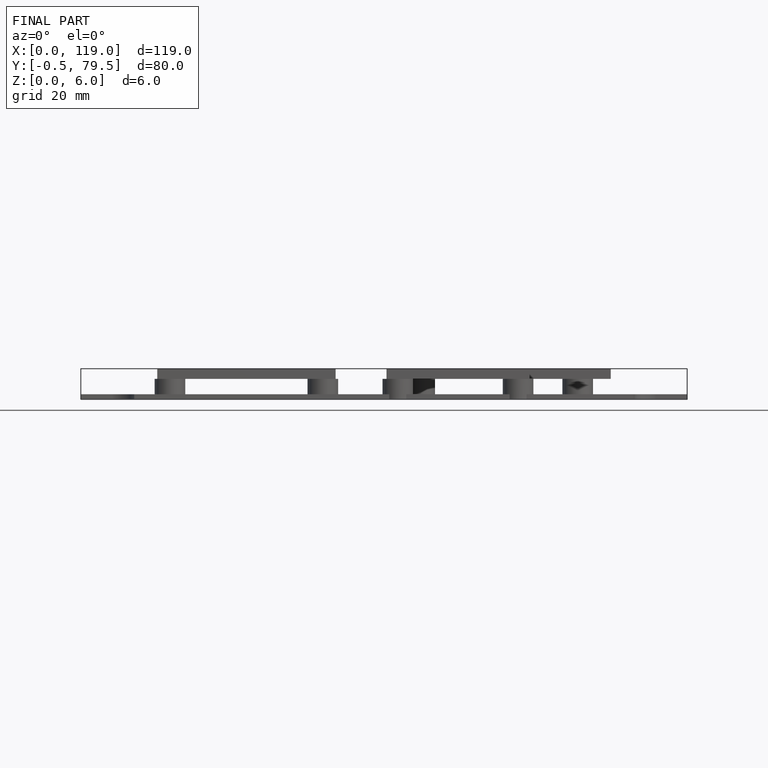
[diagram: finished part — front view with bounding-box wireframe]
